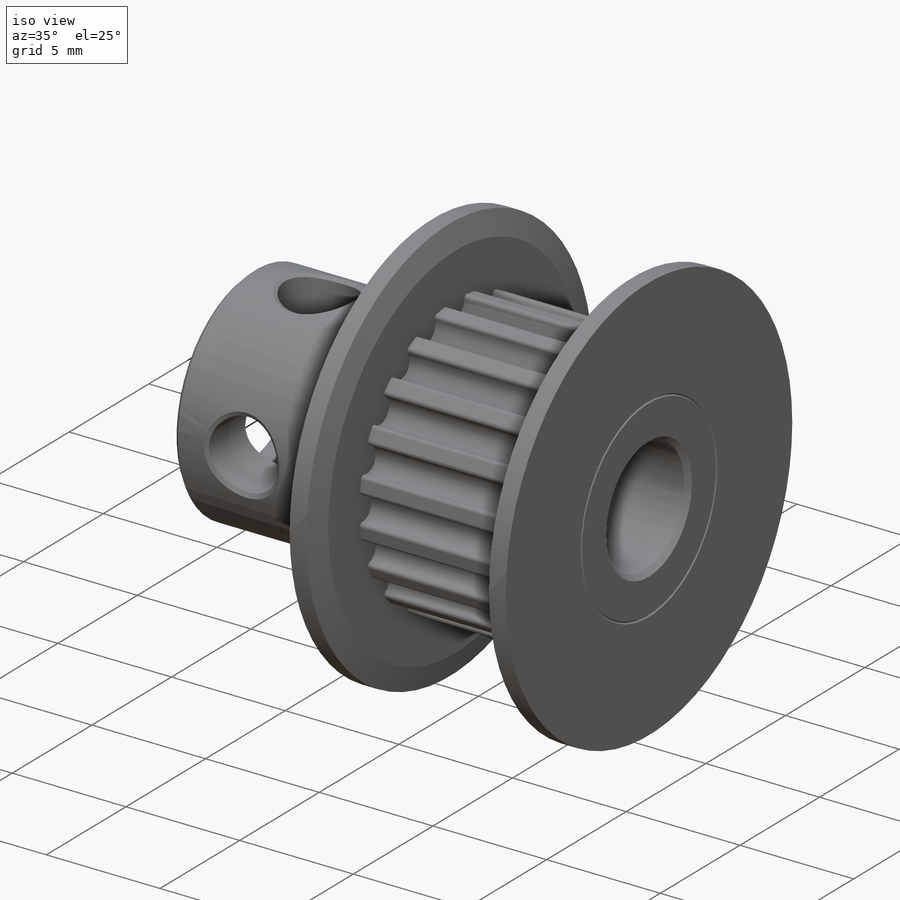
[diagram: iso view]
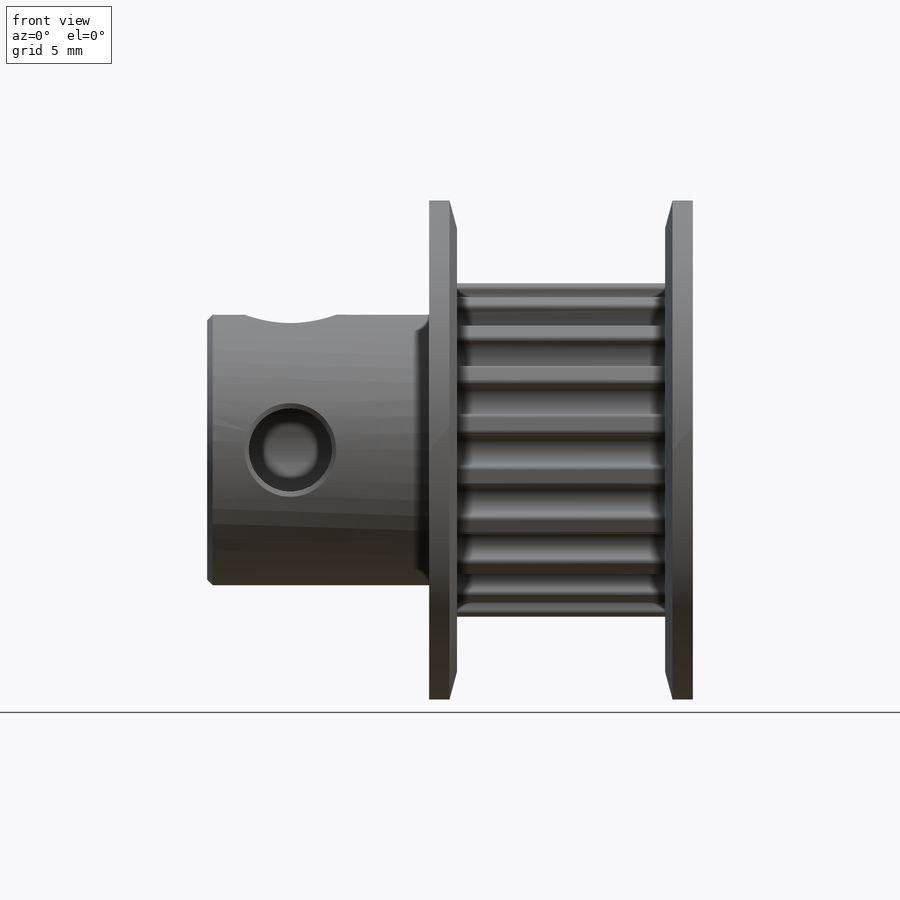
[diagram: front view]
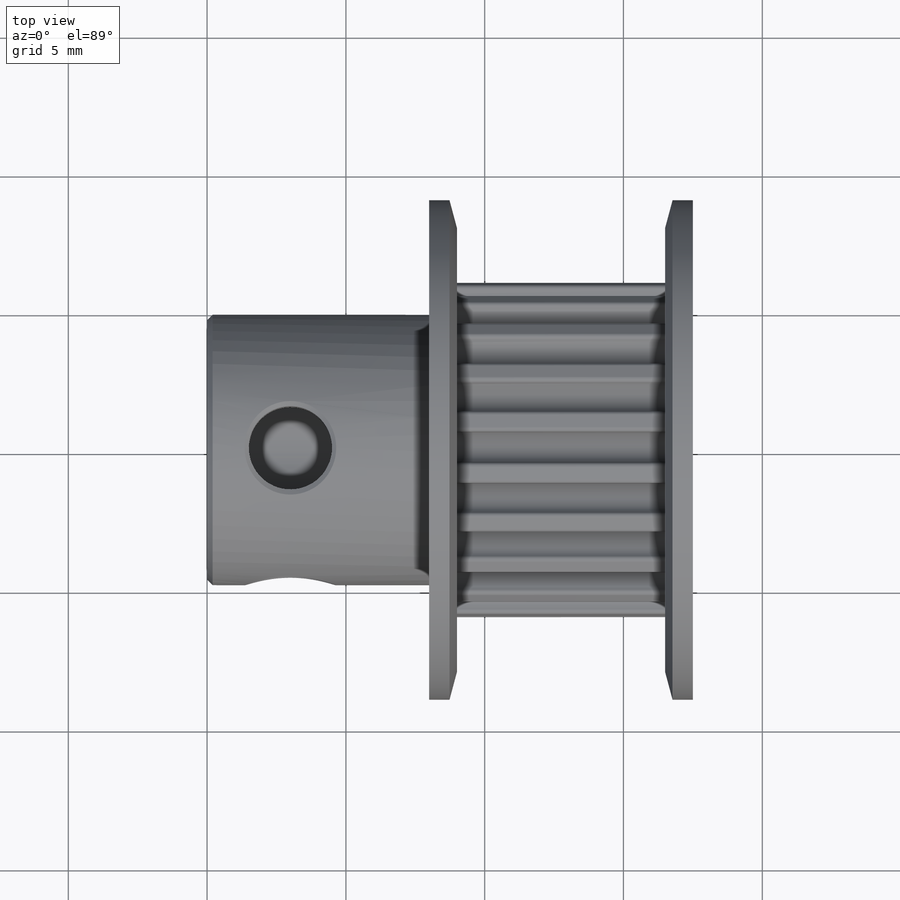
[diagram: top view]
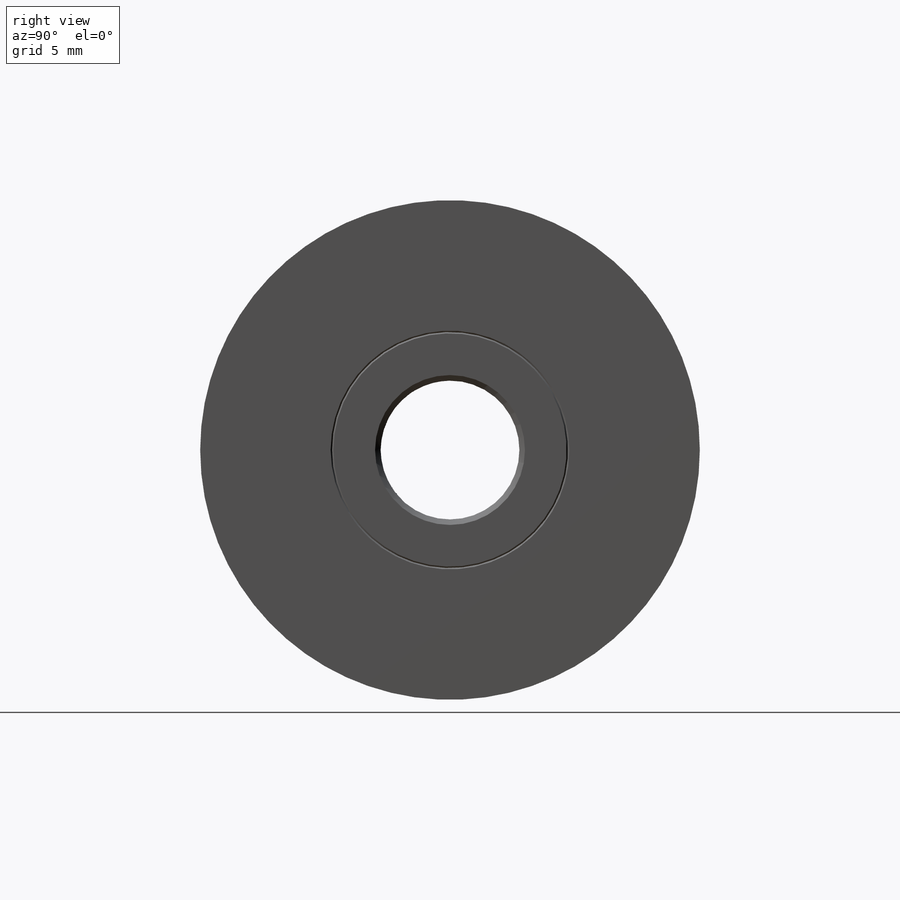
[diagram: right view]
SOLIDWORKS PART (.sldprt)
format: sldprt  version: not decoded by parser v0  size: 562,688 bytes
history: native  units: mm
features: sketch x4, cut_extrude x3, material x1, revolve x1, fillet x1, pattern_circular x1, chamfer x1 (+12 scaffold rows collapsed)
feature tree (24):
  scaffold x12  (default folders/planes/origin — collapsed)
  material  "6063-T1"
  sketch  "Sketch1"  dims[c1.D22=0.1mm c1.D1=7.0mm c1.D2=5.5mm c1.D3=7.5mm c1.D4=0.15mm c1.D5=0.5mm c1.D6=1.0mm c1.D7=0.65mm c1.D8=7.0mm c1.D9=7.5mm c1.D10=9.5mm c1.D11=7.5mm c1.D12=1.0mm c1.D13=1.0mm c1.D14=~1.019239mm c2.D13=2.0mm c2.D14=~4.350472mm c2.D15=0.5mm c3.D14=14.0mm c3.D15=1.84mm c3.D17=~0.256133mm c3.D7=6.0mm c3.D8=7.5mm c3.D18=3.5mm c3.D19=~3.501218mm c4.D18=3.5mm c4.D19=0.3mm c4.D20=3.2mm c4.D21=0.3mm c4.D22=~1.390591mm c4.D23=0.1mm c4.D13=4.25mm c4.D6=6.05mm c4.D4=4.25mm c5.D13=~0.615262mm c5.D5=1.0mm c5.D9=5.5mm c5.D2=5.5mm c6.D9=~0.531394mm c6.D2=~0.078885mm c7.D2=90.0deg c8.D2=0.05mm c8.D3=~1.090799mm c9.D3=15.0deg c9.D5=~0.28232mm c10.D5=15.0deg c11.D5=1.0mm c11.D7=18.0mm c11.D9=1.0mm c12.D7=18.0mm c12.D11=5.5mm c12.D9=0.9mm c13.D11=9.75mm c13.D12=17.5mm c13.D10=9.5mm c13.D8=1.0mm c13.D9=1.0mm]
  revolve  "Body"  Angle=360deg
  sketch  "Sketch 2"  dims[D1=5.0mm]
  cut_extrude  "Bore"  [1 undecoded]
  sketch  "Sketch 3"  dims[c1.D1=~0.914771mm c1.D2=1.0mm c2.D1=5.855mm c2.D2=2.0mm]
  cut_extrude  "20tooth"  [1 undecoded]
  fillet  "Filets"  Radius=0.15mm
  sketch  "Sketch 4"  dims[D1=3.0mm D2=3.0mm D3=3.0mm]
  cut_extrude  "Set screw"  [1 undecoded]
  pattern_circular  "Set screw pattern"  Count=2 Angle=270deg
  chamfer  "Chamfers"  Distance=0.2mm Angle=45deg
decode coverage: 8 of 11 modeling features carry decoded parameters
note: ~ marks probable driven/reference dimensions
note: 3 parameter values undecoded
summary: no parameter record found for 3 features
note: suppression state not decoded; provenance and decode notes live in map.json
